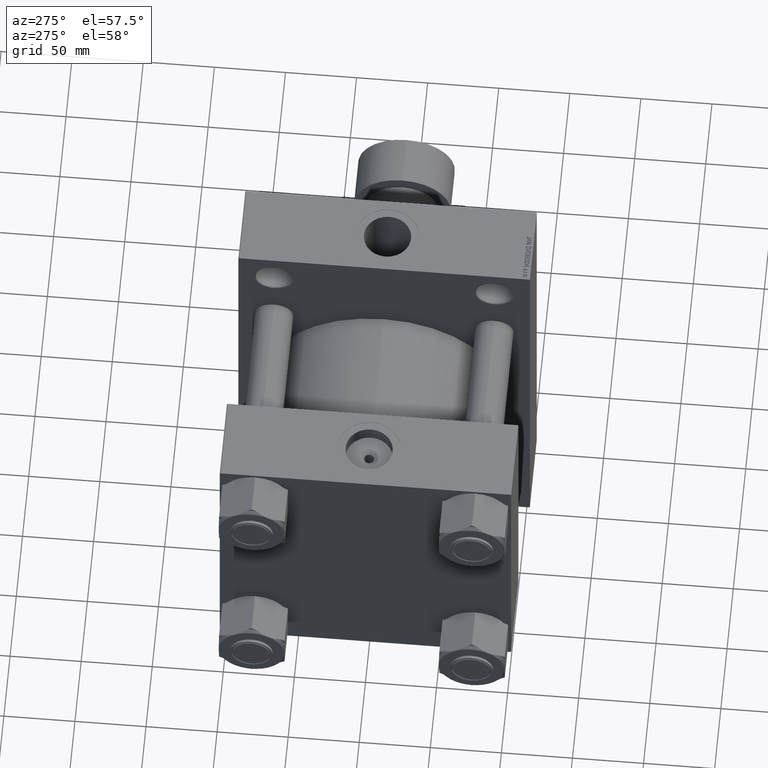
[diagram: clean part render]
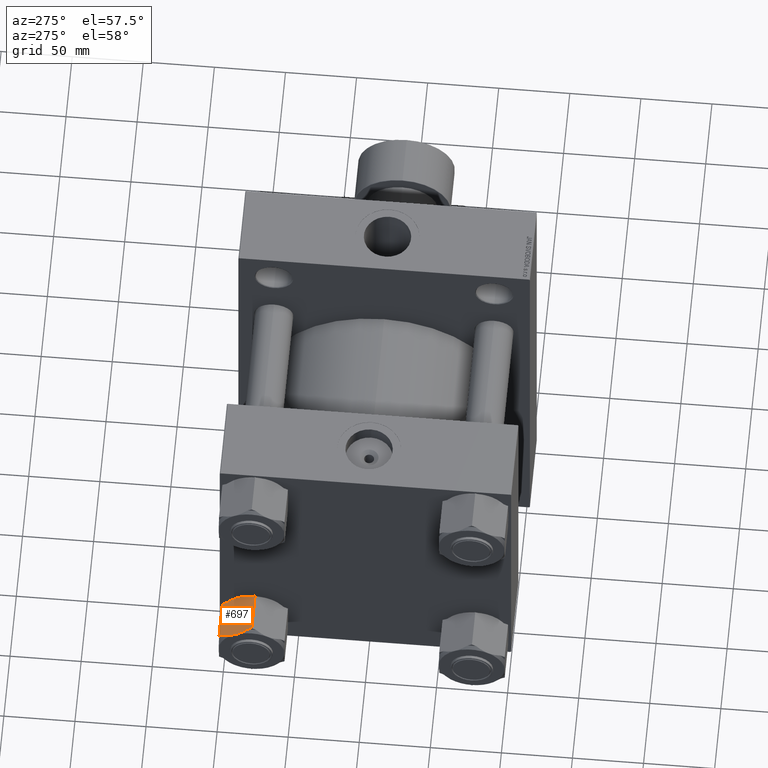
[diagram: same view with one face highlighted and labeled with its STEP entity id]
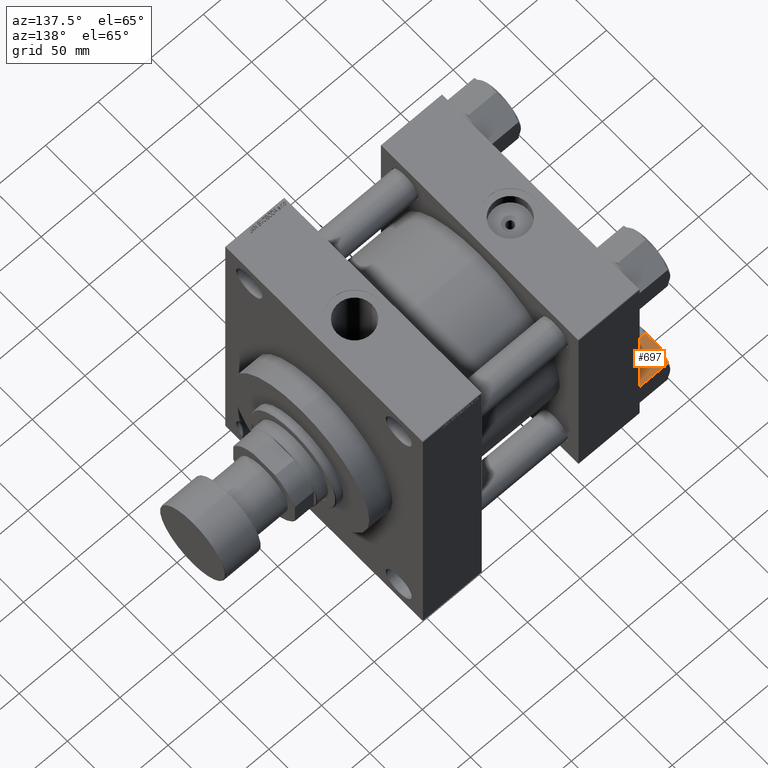
[diagram: same view with one face highlighted and labeled with its STEP entity id]
A machine part, auxiliary view. The second image highlights one B-rep face of the part: STEP entity #697.
A second angle (auxiliary view) of the same face is appended — the face is thin or edge-on in the first view.
In plain terms, the highlighted planar face has unit normal (-0, -0.5, -0.866).
Its self-contained STEP definition (entity closure, byte-faithful):
#170 = CARTESIAN_POINT ( 'NONE',  ( 13.31000000000000583, 23.05359624874177271, -2.000000000000001776 ) ) ;
#573 = CARTESIAN_POINT ( 'NONE',  ( 21.64584558940374848, 8.615488163845544278, -0.2290702059543295588 ) ) ;
#697 = ADVANCED_FACE ( 'NONE', ( #8384 ), #34907, .F. ) ;
#815 = CARTESIAN_POINT ( 'NONE',  ( 20.38949137558736879, 10.79155749447877533, -0.01178697739765957944 ) ) ;
#1051 = CARTESIAN_POINT ( 'NONE',  ( 19.96500000000001762, 11.52679812437088458, 0.000000000000000000 ) ) ;
#1233 = EDGE_CURVE ( 'NONE', #8635, #26164, #22448, .T. ) ;
#1869 = ORIENTED_EDGE ( 'NONE', *, *, #36353, .T. ) ;
#1946 = CARTESIAN_POINT ( 'NONE',  ( 19.96500000000001762, 11.52679812437088458, -31.00000000000000000 ) ) ;
#2109 = CARTESIAN_POINT ( 'NONE',  ( 13.31000000000000583, 23.05359624874177271, -2.000000000000001776 ) ) ;
#3088 = DIRECTION ( 'NONE',  ( -0.000000000000000000, -0.000000000000000000, 1.000000000000000000 ) ) ;
#3353 = LINE ( 'NONE', #170, #31602 ) ;
#3949 = VERTEX_POINT ( 'NONE', #10131 ) ;
#4223 = CARTESIAN_POINT ( 'NONE',  ( 20.81104382412701526, 10.06140723555303751, -0.05818196640765980338 ) ) ;
#4562 = VERTEX_POINT ( 'NONE', #27068 ) ;
#4881 = CARTESIAN_POINT ( 'NONE',  ( 22.86684697778494524, 6.500651723057158549, -30.29409426249537773 ) ) ;
#4995 = EDGE_CURVE ( 'NONE', #26164, #22411, #16718, .T. ) ;
#5421 = CARTESIAN_POINT ( 'NONE',  ( 18.90939003826339615, 13.35516821107454710, -30.90723860914736321 ) ) ;
#5914 = CARTESIAN_POINT ( 'NONE',  ( 15.84797143746256509, 18.65770077089800338, -29.61657409342407377 ) ) ;
#6211 = VERTEX_POINT ( 'NONE', #21063 ) ;
#7602 = ORIENTED_EDGE ( 'NONE', *, *, #33812, .F. ) ;
#7868 = CARTESIAN_POINT ( 'NONE',  ( 24.86944657925255342, 3.032047466098114263, -28.99999999999999645 ) ) ;
#8334 = VERTEX_POINT ( 'NONE', #7868 ) ;
#8384 = FACE_OUTER_BOUND ( 'NONE', #43118, .T. ) ;
#8605 = CARTESIAN_POINT ( 'NONE',  ( 23.28230434144013827, 5.781058460827780188, -0.8826024950750009923 ) ) ;
#8635 = VERTEX_POINT ( 'NONE', #40381 ) ;
#8827 = CARTESIAN_POINT ( 'NONE',  ( 18.28415441059626545, 14.43810808489621778, -30.77092979404566719 ) ) ;
#9015 = CARTESIAN_POINT ( 'NONE',  ( 24.07590164194817106, 4.406507615598334482, -29.58973526236487572 ) ) ;
#9074 = CARTESIAN_POINT ( 'NONE',  ( 19.54050862441265934, 12.26203875426299028, -30.98821302260234489 ) ) ;
#9321 = CARTESIAN_POINT ( 'NONE',  ( 16.64769565855988631, 17.27253778791398986, -30.11739750492500534 ) ) ;
#9414 = ORIENTED_EDGE ( 'NONE', *, *, #27912, .F. ) ;
#9673 = CARTESIAN_POINT ( 'NONE',  ( 15.45439374533419929, 19.33939733039003528, -1.691610128380181877 ) ) ;
#10131 = CARTESIAN_POINT ( 'NONE',  ( 13.31000000000000227, 23.05359624874177271, -28.99999999999999645 ) ) ;
#10301 = EDGE_CURVE ( 'NONE', #4562, #8635, #13158, .T. ) ;
#12026 = ORIENTED_EDGE ( 'NONE', *, *, #1233, .F. ) ;
#12659 = CARTESIAN_POINT ( 'NONE',  ( 24.47560625466582707, 3.714198918351719225, -29.30838987161981635 ) ) ;
#12719 = CARTESIAN_POINT ( 'NONE',  ( 19.11895617587300933, 12.99218901318872277, -30.94181803359234451 ) ) ;
#13158 = B_SPLINE_CURVE_WITH_KNOTS ( 'NONE', 3,
 ( #23221, #22976, #8605, #22740, #573, #37570, #4223, #815, #37806, #1051 ),
 .UNSPECIFIED., .F., .F.,
 ( 4, 2, 2, 2, 4 ),
 ( 5.412492187795606600E-07, 0.005006446827219890143, 0.007509399616220445266, 0.008760876010720723694, 0.01001235240522100126 ),
 .UNSPECIFIED. ) ;
#13523 = VERTEX_POINT ( 'NONE', #46784 ) ;
#16474 = CARTESIAN_POINT ( 'NONE',  ( 17.06315302221506514, 16.55294452568459818, -0.7059057375046251526 ) ) ;
#16572 = VECTOR ( 'NONE', #3088, 1000.000000000000000 ) ;
#16616 = CARTESIAN_POINT ( 'NONE',  ( 17.87195049697044524, 15.15206620637486701, -30.63660360727164544 ) ) ;
#16718 = LINE ( 'NONE', #2109, #29337 ) ;
#17412 = EDGE_CURVE ( 'NONE', #6211, #4562, #3353, .T. ) ;
#18234 = LINE ( 'NONE', #44272, #39545 ) ;
#19900 = CARTESIAN_POINT ( 'NONE',  ( 18.28824786674793401, 14.43101801086297620, -0.1878618656617429272 ) ) ;
#20080 = DIRECTION ( 'NONE',  ( 0.4999999999999998335, -0.8660254037844387076, 0.000000000000000000 ) ) ;
#21063 = CARTESIAN_POINT ( 'NONE',  ( 26.62000000000001165, -3.103245954629008997E-15, -2.000000000000001776 ) ) ;
#22099 = DIRECTION ( 'NONE',  ( -0.4999999999999998335, 0.8660254037844387076, 0.000000000000000000 ) ) ;
#22411 = VERTEX_POINT ( 'NONE', #30273 ) ;
#22448 = B_SPLINE_CURVE_WITH_KNOTS ( 'NONE', 3,
 ( #27679, #42523, #19900, #16474, #28166, #43005, #9673, #31831 ),
 .UNSPECIFIED., .F., .F.,
 ( 4, 2, 2, 4 ),
 ( 0.01001235240522100126, 0.01501505178013391034, 0.01751640146759036662, 0.02001775115504682290 ),
 .UNSPECIFIED. ) ;
#22740 = CARTESIAN_POINT ( 'NONE',  ( 22.05804950302956158, 7.901530042366898599, -0.3633963927283504480 ) ) ;
#22976 = CARTESIAN_POINT ( 'NONE',  ( 24.08202856253744883, 4.395895477843773769, -1.383425906575929121 ) ) ;
#23221 = CARTESIAN_POINT ( 'NONE',  ( 24.86944657925254631, 3.032047466098124922, -2.000000000000000000 ) ) ;
#23245 = DIRECTION ( 'NONE',  ( -0.8660254037844387076, -0.4999999999999998335, 0.000000000000000000 ) ) ;
#23600 = CARTESIAN_POINT ( 'NONE',  ( 13.31000000000000583, 23.05359624874177271, -28.99999999999999645 ) ) ;
#23727 = CARTESIAN_POINT ( 'NONE',  ( 13.31000000000000583, 23.05359624874177271, -31.00000000000000000 ) ) ;
#23868 = CARTESIAN_POINT ( 'NONE',  ( 20.81146273741196495, 10.06068165645954515, -31.00000000000001776 ) ) ;
#24337 = DIRECTION ( 'NONE',  ( 0.4999999999999998335, -0.8660254037844387076, 0.000000000000000000 ) ) ;
#24760 = ORIENTED_EDGE ( 'NONE', *, *, #17412, .F. ) ;
#25163 = EDGE_CURVE ( 'NONE', #30519, #27560, #35858, .T. ) ;
#25286 = LINE ( 'NONE', #44246, #41926 ) ;
#25598 = EDGE_CURVE ( 'NONE', #3949, #30519, #18234, .T. ) ;
#26164 = VERTEX_POINT ( 'NONE', #26385 ) ;
#26235 = B_SPLINE_CURVE_WITH_KNOTS ( 'NONE', 3,
 ( #1946, #23868, #45997, #4881, #31159, #9015, #12659, #38210 ),
 .UNSPECIFIED., .F., .F.,
 ( 4, 2, 2, 4 ),
 ( 0.01001235240522101513, 0.01501505178013393463, 0.01751640146759039091, 0.02001775115504684718 ),
 .UNSPECIFIED. ) ;
#26385 = CARTESIAN_POINT ( 'NONE',  ( 15.06055342074748893, 20.02154878264364513, -2.000000000000000000 ) ) ;
#26416 = DIRECTION ( 'NONE',  ( -0.000000000000000000, -0.000000000000000000, 1.000000000000000000 ) ) ;
#26774 = CARTESIAN_POINT ( 'NONE',  ( 15.06055342074748538, 20.02154878264365578, -28.99999999999999645 ) ) ;
#27068 = CARTESIAN_POINT ( 'NONE',  ( 24.86944657925254631, 3.032047466098124922, -2.000000000000000000 ) ) ;
#27560 = VERTEX_POINT ( 'NONE', #35571 ) ;
#27679 = CARTESIAN_POINT ( 'NONE',  ( 19.96500000000001762, 11.52679812437088458, 0.000000000000000000 ) ) ;
#27912 = EDGE_CURVE ( 'NONE', #13523, #6211, #25286, .T. ) ;
#28166 = CARTESIAN_POINT ( 'NONE',  ( 16.65815586667608272, 17.25442017599901234, -0.9177057102691500434 ) ) ;
#28890 = LINE ( 'NONE', #44210, #16572 ) ;
#29337 = VECTOR ( 'NONE', #34966, 1000.000000000000114 ) ;
#30273 = CARTESIAN_POINT ( 'NONE',  ( 13.31000000000000227, 23.05359624874177271, -2.000000000000001776 ) ) ;
#30308 = ORIENTED_EDGE ( 'NONE', *, *, #31589, .F. ) ;
#30519 = VERTEX_POINT ( 'NONE', #26774 ) ;
#31159 = CARTESIAN_POINT ( 'NONE',  ( 23.27184413332395252, 5.799176072742748822, -30.08229428973086073 ) ) ;
#31465 = CARTESIAN_POINT ( 'NONE',  ( 19.75324869229454094, 11.89356214788590371, -31.00000000000002487 ) ) ;
#31589 = EDGE_CURVE ( 'NONE', #27560, #8334, #26235, .T. ) ;
#31602 = VECTOR ( 'NONE', #22099, 1000.000000000000114 ) ;
#31831 = CARTESIAN_POINT ( 'NONE',  ( 15.06055342074748893, 20.02154878264364513, -2.000000000000000000 ) ) ;
#33795 = DIRECTION ( 'NONE',  ( 0.4999999999999998335, -0.8660254037844387076, 0.000000000000000000 ) ) ;
#33812 = EDGE_CURVE ( 'NONE', #8334, #13523, #46218, .T. ) ;
#34907 = PLANE ( 'NONE',  #47811 ) ;
#34966 = DIRECTION ( 'NONE',  ( -0.4999999999999998335, 0.8660254037844387076, 0.000000000000000000 ) ) ;
#35571 = CARTESIAN_POINT ( 'NONE',  ( 19.96500000000001762, 11.52679812437088458, -31.00000000000000000 ) ) ;
#35858 = B_SPLINE_CURVE_WITH_KNOTS ( 'NONE', 3,
 ( #45811, #5914, #9321, #16616, #8827, #5421, #12719, #9074, #31465, #42161 ),
 .UNSPECIFIED., .F., .F.,
 ( 4, 2, 2, 2, 4 ),
 ( 5.412492187780009547E-07, 0.005006446827219896215, 0.007509399616220453939, 0.008760876010720732368, 0.01001235240522101513 ),
 .UNSPECIFIED. ) ;
#36353 = EDGE_CURVE ( 'NONE', #3949, #22411, #28890, .T. ) ;
#37570 = CARTESIAN_POINT ( 'NONE',  ( 21.02060996173662488, 9.698428037667213175, -0.09276139085263518380 ) ) ;
#37806 = CARTESIAN_POINT ( 'NONE',  ( 20.17675130770547653, 11.16003410085585834, 1.748313649041642723E-14 ) ) ;
#38210 = CARTESIAN_POINT ( 'NONE',  ( 24.86944657925255342, 3.032047466098114263, -28.99999999999999645 ) ) ;
#38274 = VECTOR ( 'NONE', #24337, 1000.000000000000114 ) ;
#39545 = VECTOR ( 'NONE', #33795, 1000.000000000000114 ) ;
#39967 = ORIENTED_EDGE ( 'NONE', *, *, #25163, .F. ) ;
#40052 = ORIENTED_EDGE ( 'NONE', *, *, #4995, .F. ) ;
#40351 = ORIENTED_EDGE ( 'NONE', *, *, #10301, .F. ) ;
#40381 = CARTESIAN_POINT ( 'NONE',  ( 19.96500000000001762, 11.52679812437088458, 0.000000000000000000 ) ) ;
#41926 = VECTOR ( 'NONE', #26416, 1000.000000000000000 ) ;
#42161 = CARTESIAN_POINT ( 'NONE',  ( 19.96500000000001762, 11.52679812437088458, -31.00000000000000000 ) ) ;
#42523 = CARTESIAN_POINT ( 'NONE',  ( 19.11853726258807029, 12.99291459228220980, 1.731109468735187063E-14 ) ) ;
#43005 = CARTESIAN_POINT ( 'NONE',  ( 15.85409835805185175, 18.64708863314342580, -1.410264737635122057 ) ) ;
#43118 = EDGE_LOOP ( 'NONE', ( #47398, #1869, #40052, #12026, #40351, #24760, #9414, #7602, #30308, #39967 ) ) ;
#44210 = CARTESIAN_POINT ( 'NONE',  ( 13.31000000000000583, 23.05359624874177271, -31.00000000000000000 ) ) ;
#44246 = CARTESIAN_POINT ( 'NONE',  ( 26.62000000000001165, -3.103245954629008997E-15, -31.00000000000000000 ) ) ;
#44272 = CARTESIAN_POINT ( 'NONE',  ( 13.31000000000000583, 23.05359624874177271, -28.99999999999999645 ) ) ;
#45811 = CARTESIAN_POINT ( 'NONE',  ( 15.06055342074748538, 20.02154878264365578, -28.99999999999999645 ) ) ;
#45997 = CARTESIAN_POINT ( 'NONE',  ( 21.64175213325209057, 8.622578237878784080, -30.81213813433825877 ) ) ;
#46218 = LINE ( 'NONE', #23600, #38274 ) ;
#46784 = CARTESIAN_POINT ( 'NONE',  ( 26.62000000000001165, -3.103245954629008997E-15, -28.99999999999999645 ) ) ;
#47398 = ORIENTED_EDGE ( 'NONE', *, *, #25598, .F. ) ;
#47811 = AXIS2_PLACEMENT_3D ( 'NONE', #23727, #23245, #20080 ) ;